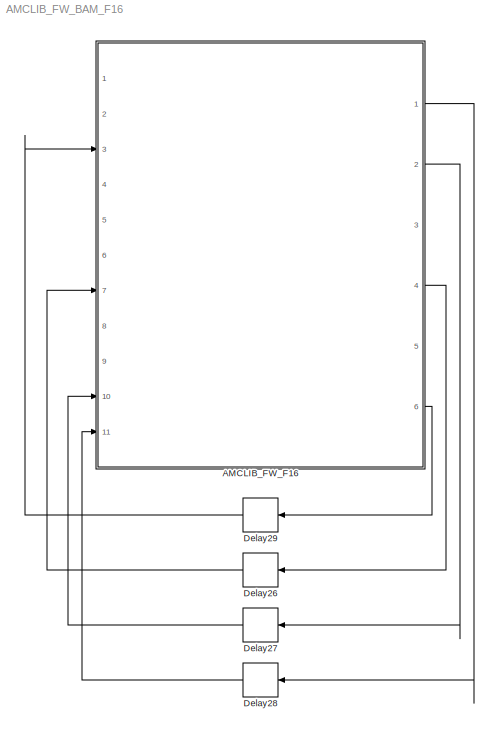
MODEL AMCLIB_FW_BAM_F16
KIND model
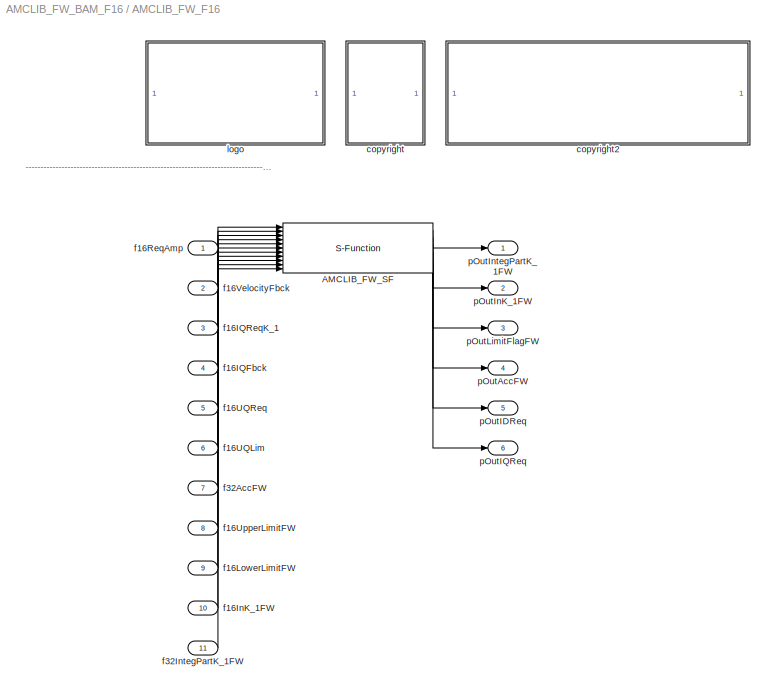
BLOCK [SubSystem] AMCLIB_FW_F16
  Ports = [11, 6]
  RequestExecContextInheritance = off
  SID = 1
BLOCK [S-Function] AMCLIB_FW_F16/AMCLIB_FW_SF
  EnableBusSupport = off
  FunctionName = AMCLIB_FW_SF_F16
  Parameters = u16NSamplesFW,f16PropGainFW,s16PropGainShiftFW,f16IntegGainFW,s16IntegGainShiftFW
  Ports = [11, 6]
  SID = 4
BLOCK [SubSystem] AMCLIB_FW_F16/<copyright redacted>
  Ports = []
  RequestExecContextInheritance = off
  SID = 26
BLOCK [SubSystem] AMCLIB_FW_F16/copyright2
  Ports = []
  RequestExecContextInheritance = off
  SID = 29
BLOCK [Inport] AMCLIB_FW_F16/f16IQFbck
  IconDisplay = Port number
  Port = 4
  SID = 8
BLOCK [Inport] AMCLIB_FW_F16/f16IQReqK_1
  IconDisplay = Port number
  Port = 3
  SID = 7
BLOCK [Inport] AMCLIB_FW_F16/f16InK_1FW
  IconDisplay = Port number
  Port = 10
  SID = 14
BLOCK [Inport] AMCLIB_FW_F16/f16LowerLimitFW
  IconDisplay = Port number
  Port = 9
  SID = 13
BLOCK [Inport] AMCLIB_FW_F16/f16ReqAmp
  IconDisplay = Port number
  SID = 5
BLOCK [Inport] AMCLIB_FW_F16/f16UQLim
  IconDisplay = Port number
  Port = 6
  SID = 10
BLOCK [Inport] AMCLIB_FW_F16/f16UQReq
  IconDisplay = Port number
  Port = 5
  SID = 9
BLOCK [Inport] AMCLIB_FW_F16/f16UpperLimitFW
  IconDisplay = Port number
  Port = 8
  SID = 12
BLOCK [Inport] AMCLIB_FW_F16/f16VelocityFbck
  IconDisplay = Port number
  Port = 2
  SID = 6
BLOCK [Inport] AMCLIB_FW_F16/f32AccFW
  IconDisplay = Port number
  Port = 7
  SID = 11
BLOCK [Inport] AMCLIB_FW_F16/f32IntegPartK_1FW
  IconDisplay = Port number
  Port = 11
  SID = 15
BLOCK [SubSystem] AMCLIB_FW_F16/logo
  Ports = []
  RequestExecContextInheritance = off
  SID = 22
BLOCK [Outport] AMCLIB_FW_F16/pOutAccFW
  IconDisplay = Port number
  Port = 4
  SID = 19
BLOCK [Outport] AMCLIB_FW_F16/pOutIDReq
  IconDisplay = Port number
  Port = 5
  SID = 20
BLOCK [Outport] AMCLIB_FW_F16/pOutIQReq
  IconDisplay = Port number
  Port = 6
  SID = 21
BLOCK [Outport] AMCLIB_FW_F16/pOutInK_1FW
  IconDisplay = Port number
  Port = 2
  SID = 17
BLOCK [Outport] AMCLIB_FW_F16/pOutIntegPartK_1FW
  IconDisplay = Port number
  SID = 16
BLOCK [Outport] AMCLIB_FW_F16/pOutLimitFlagFW
  IconDisplay = Port number
  Port = 3
  SID = 18
BLOCK [Delay] Delay26
  DelayLength = 1
  InitialCondition = 0
  InputPortMap = u0
  Ports = [1, 1]
  SID = 37
BLOCK [Delay] Delay27
  DelayLength = 1
  InitialCondition = 0
  InputPortMap = u0
  Ports = [1, 1]
  SID = 38
BLOCK [Delay] Delay28
  DelayLength = 1
  InitialCondition = 0
  InputPortMap = u0
  Ports = [1, 1]
  SID = 39
BLOCK [Delay] Delay29
  DelayLength = 1
  InitialCondition = 0
  InputPortMap = u0
  Ports = [1, 1]
  SID = 40
ANNOTATION AMCLIB_FW_F16: ---------------------------------------------------------------------------------------------------------------------------------------------------------------------------------------------------
LINE AMCLIB_FW_F16/AMCLIB_FW_SF:1 -> AMCLIB_FW_F16/pOutIntegPartK_1FW:1
LINE AMCLIB_FW_F16/AMCLIB_FW_SF:2 -> AMCLIB_FW_F16/pOutInK_1FW:1
LINE AMCLIB_FW_F16/AMCLIB_FW_SF:3 -> AMCLIB_FW_F16/pOutLimitFlagFW:1
LINE AMCLIB_FW_F16/AMCLIB_FW_SF:4 -> AMCLIB_FW_F16/pOutAccFW:1
LINE AMCLIB_FW_F16/AMCLIB_FW_SF:5 -> AMCLIB_FW_F16/pOutIDReq:1
LINE AMCLIB_FW_F16/AMCLIB_FW_SF:6 -> AMCLIB_FW_F16/pOutIQReq:1
LINE AMCLIB_FW_F16/f16IQFbck:1 -> AMCLIB_FW_F16/AMCLIB_FW_SF:4
LINE AMCLIB_FW_F16/f16IQReqK_1:1 -> AMCLIB_FW_F16/AMCLIB_FW_SF:3
LINE AMCLIB_FW_F16/f16InK_1FW:1 -> AMCLIB_FW_F16/AMCLIB_FW_SF:10
LINE AMCLIB_FW_F16/f16LowerLimitFW:1 -> AMCLIB_FW_F16/AMCLIB_FW_SF:9
LINE AMCLIB_FW_F16/f16ReqAmp:1 -> AMCLIB_FW_F16/AMCLIB_FW_SF:1
LINE AMCLIB_FW_F16/f16UQLim:1 -> AMCLIB_FW_F16/AMCLIB_FW_SF:6
LINE AMCLIB_FW_F16/f16UQReq:1 -> AMCLIB_FW_F16/AMCLIB_FW_SF:5
LINE AMCLIB_FW_F16/f16UpperLimitFW:1 -> AMCLIB_FW_F16/AMCLIB_FW_SF:8
LINE AMCLIB_FW_F16/f16VelocityFbck:1 -> AMCLIB_FW_F16/AMCLIB_FW_SF:2
LINE AMCLIB_FW_F16/f32AccFW:1 -> AMCLIB_FW_F16/AMCLIB_FW_SF:7
LINE AMCLIB_FW_F16/f32IntegPartK_1FW:1 -> AMCLIB_FW_F16/AMCLIB_FW_SF:11
LINE AMCLIB_FW_F16:1 -> Delay28:1
LINE AMCLIB_FW_F16:2 -> Delay27:1
LINE AMCLIB_FW_F16:4 -> Delay26:1
LINE AMCLIB_FW_F16:6 -> Delay29:1
LINE Delay26:1 -> AMCLIB_FW_F16:7
LINE Delay27:1 -> AMCLIB_FW_F16:10
LINE Delay28:1 -> AMCLIB_FW_F16:11
LINE Delay29:1 -> AMCLIB_FW_F16:3
